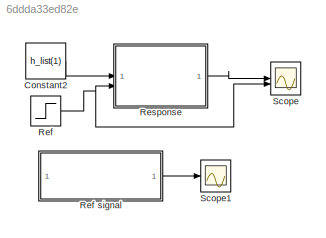
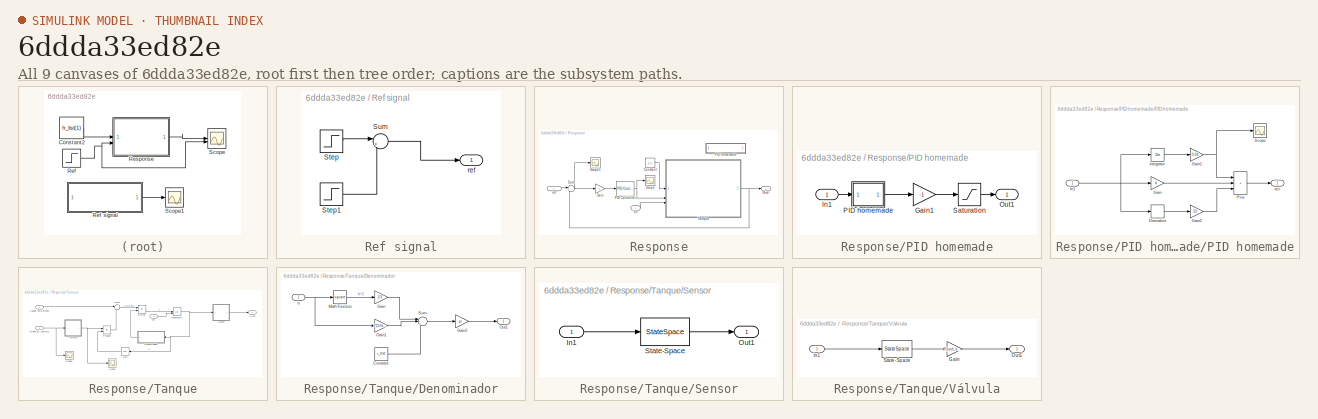
[diagram: thumbnail index - all 9 canvases of the model, root first then tree order]
MODEL slx_6ddda33ed82e
KIND model
CONFIG AbsTol = auto
CONFIG EnableMultiTasking = off
CONFIG FixedStep = 0.1
CONFIG MaxStep = auto
CONFIG MinStep = auto
CONFIG RelTol = 1e-3
CONFIG SampleTimeConstraint = Unconstrained
CONFIG SolverName = FixedStepAuto
CONFIG StartTime = 0.0
CONFIG StopTime = 400
BLOCK [Constant] Constant2
  Value = h_list(1)
BLOCK [Step] Ref
  After = 0.8
  Before = h_list(1)
  SampleTime = 0
  Time = 20
BLOCK [SubSystem] Ref signal
BLOCK [Step] Ref signal/Step
  After = 0.6
  Before = 0.2
  SampleTime = 0
  Time = 40
BLOCK [Step] Ref signal/Step1
  After = 0.4
  SampleTime = 0
  Time = 400
BLOCK [Sum] Ref signal/Sum
  Inputs = |++
BLOCK [Outport] Ref signal/ref
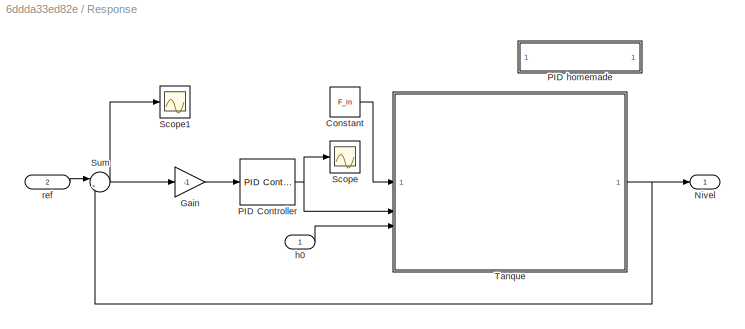
BLOCK [SubSystem] Response
BLOCK [Constant] Response/Constant
  Value = F_in
BLOCK [Gain] Response/Gain
  Gain = -1
BLOCK [Outport] Response/Nivel
BLOCK [Reference] Response/PID Controller  REF=slpidlib/PID Controller
  LibrarySourceBlock = simulink/Continuous/PID Controller
  SourceBlock = slpidlib/PID Controller
  SourceType = PID 1dof
BLOCK [SubSystem] Response/PID homemade
BLOCK [Gain] Response/PID homemade/Gain1
  Gain = -1
BLOCK [Inport] Response/PID homemade/In1
BLOCK [Outport] Response/PID homemade/Out1
BLOCK [SubSystem] Response/PID homemade/PID homemade
BLOCK [Derivative] Response/PID homemade/PID homemade/Derivative
BLOCK [Gain] Response/PID homemade/PID homemade/Gain
  Gain = 4
BLOCK [Gain] Response/PID homemade/PID homemade/Gain1
  Gain = 0.04
BLOCK [Gain] Response/PID homemade/PID homemade/Gain2
  Gain = 50
BLOCK [Inport] Response/PID homemade/PID homemade/In1
BLOCK [Integrator] Response/PID homemade/PID homemade/Integrator
BLOCK [Sum] Response/PID homemade/PID homemade/Plus
  IconShape = rectangular
  Inputs = +++
BLOCK [Scope] Response/PID homemade/PID homemade/Scope
  Floating = off
  NumInputPorts = 1
  ScopeSpecificationString = Simulink.scopes.TimeScopeBlockCfg('CurrentConfiguration', extmgr.ConfigurationSet(extmgr.Configuration('Core','General UI',true),extmgr.Configuration('Core','Source UI',true),extmgr.Configuration('Sources','WiredSimulink',true,'DataLoggingVariableName','ScopeData1'),extmgr.Configuration('Visuals','Time Domain',true,'SerializedDisplays',{struct('MinYLimReal','-0.59094','MaxYLimReal','0.93666','YLab...<+1453ch>
BLOCK [Outport] Response/PID homemade/PID homemade/act
BLOCK [Saturate] Response/PID homemade/Saturation
  LowerLimit = 0
  UpperLimit = 1
BLOCK [Scope] Response/Scope
  Floating = off
  NumInputPorts = 1
  ScopeSpecificationString = Simulink.scopes.TimeScopeBlockCfg('CurrentConfiguration', extmgr.ConfigurationSet(extmgr.Configuration('Core','General UI',true),extmgr.Configuration('Core','Source UI',true),extmgr.Configuration('Sources','WiredSimulink',true,'DataLoggingVariableName','ScopeData3'),extmgr.Configuration('Visuals','Time Domain',true,'SerializedDisplays',{struct('MinYLimReal','-0.11136','MaxYLimReal','1.00221','YLab...<+1535ch>
BLOCK [Scope] Response/Scope1
  Floating = off
  NumInputPorts = 1
  ScopeSpecificationString = Simulink.scopes.TimeScopeBlockCfg('CurrentConfiguration', extmgr.ConfigurationSet(extmgr.Configuration('Core','General UI',true),extmgr.Configuration('Core','Source UI',true),extmgr.Configuration('Sources','WiredSimulink',true,'DataLoggingVariableName','ScopeData4'),extmgr.Configuration('Visuals','Time Domain',true,'SerializedDisplays',{struct('MinYLimReal','-0.07548','MaxYLimReal','0.67505','YLab...<+1451ch>
BLOCK [Sum] Response/Sum
  Inputs = |+-
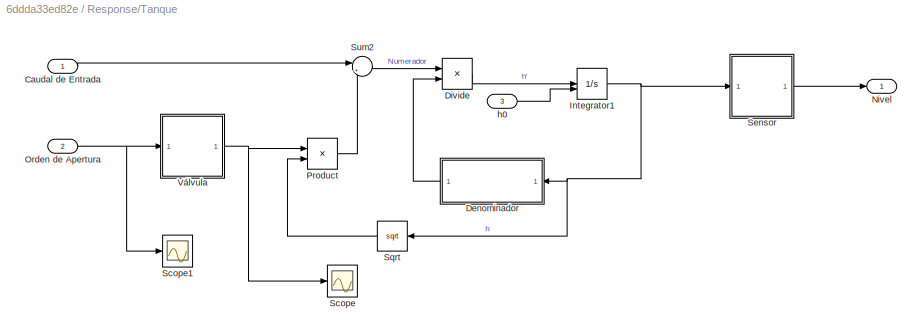
BLOCK [SubSystem] Response/Tanque
BLOCK [Inport] Response/Tanque/Caudal de Entrada
BLOCK [SubSystem] Response/Tanque/Denominador
  NameLocation = top
BLOCK [Constant] Response/Tanque/Denominador/Constant
  Value = r_0^2
BLOCK [Gain] Response/Tanque/Denominador/Gain
  Gain = 1/3
BLOCK [Gain] Response/Tanque/Denominador/Gain1
  Gain = 2*(1/tand(theta))*r_0
BLOCK [Gain] Response/Tanque/Denominador/Gain2
  Gain = pi
BLOCK [Math] Response/Tanque/Denominador/Math Function
  Operator = square
BLOCK [Outport] Response/Tanque/Denominador/Out1
BLOCK [Sum] Response/Tanque/Denominador/Sum
  Inputs = |+++
BLOCK [Inport] Response/Tanque/Denominador/h
BLOCK [Product] Response/Tanque/Divide
  Inputs = */
BLOCK [Integrator] Response/Tanque/Integrator1
  InitialCondition = h_list(5)
  InitialConditionSource = external
BLOCK [Outport] Response/Tanque/Nivel
BLOCK [Inport] Response/Tanque/Orden de Apertura
  Port = 2
BLOCK [Product] Response/Tanque/Product
BLOCK [Scope] Response/Tanque/Scope
  Floating = off
  NumInputPorts = 1
  ScopeSpecificationString = Simulink.scopes.TimeScopeBlockCfg('CurrentConfiguration', extmgr.ConfigurationSet(extmgr.Configuration('Core','General UI',true),extmgr.Configuration('Core','Source UI',true),extmgr.Configuration('Sources','WiredSimulink',true,'DataLoggingVariableName','ScopeData3'),extmgr.Configuration('Visuals','Time Domain',true,'SerializedDisplays',{struct('MinYLimReal','-0.00072','MaxYLimReal','0.00646','YLab...<+1455ch>
BLOCK [Scope] Response/Tanque/Scope1
  Floating = off
  NumInputPorts = 1
  ScopeSpecificationString = Simulink.scopes.TimeScopeBlockCfg('CurrentConfiguration', extmgr.ConfigurationSet(extmgr.Configuration('Core','General UI',true),extmgr.Configuration('Core','Source UI',true),extmgr.Configuration('Sources','WiredSimulink',true,'DataLoggingVariableName','ScopeData4'),extmgr.Configuration('Visuals','Time Domain',true,'SerializedDisplays',{struct('MinYLimReal','-0.10897','MaxYLimReal','0.98071','YLab...<+1500ch>
BLOCK [SubSystem] Response/Tanque/Sensor
BLOCK [Inport] Response/Tanque/Sensor/In1
BLOCK [Outport] Response/Tanque/Sensor/Out1
BLOCK [StateSpace] Response/Tanque/Sensor/State-Space
  A = A
  B = B
  C = C
  D = D
  InitialCondition = h_list(1)*10
BLOCK [Sqrt] Response/Tanque/Sqrt
  NameLocation = top
BLOCK [Sum] Response/Tanque/Sum2
  Inputs = |+-
BLOCK [SubSystem] Response/Tanque/Válvula
BLOCK [Gain] Response/Tanque/Válvula/Gain
  Gain = F_out_sin_k
BLOCK [Inport] Response/Tanque/Válvula/In1
BLOCK [Outport] Response/Tanque/Válvula/Out1
BLOCK [StateSpace] Response/Tanque/Válvula/State-Space
  A = A
  B = B
  C = C
  D = D
  InitialCondition = k_list(1)*10
BLOCK [Inport] Response/Tanque/h0
  Port = 3
BLOCK [Inport] Response/h0
BLOCK [Inport] Response/ref
  Port = 2
BLOCK [Scope] Scope
  Floating = off
  NumInputPorts = 2
  ScopeSpecificationString = Simulink.scopes.TimeScopeBlockCfg('CurrentConfiguration', extmgr.ConfigurationSet(extmgr.Configuration('Core','General UI',true),extmgr.Configuration('Core','Source UI',true),extmgr.Configuration('Sources','WiredSimulink',true,'DataLoggingVariableName','ScopeData6'),extmgr.Configuration('Visuals','Time Domain',true,'SerializedDisplays',{struct('MinYLimReal','0.12495','MaxYLimReal','0.87548','YLabe...<+1487ch>
BLOCK [Scope] Scope1
  Floating = off
  NumInputPorts = 1
  ScopeSpecificationString = Simulink.scopes.TimeScopeBlockCfg('CurrentConfiguration', extmgr.ConfigurationSet(extmgr.Configuration('Core','General UI',true),extmgr.Configuration('Core','Source UI',true),extmgr.Configuration('Sources','WiredSimulink',true,'DataLoggingVariableName','ScopeData2'),extmgr.Configuration('Visuals','Time Domain',true,'SerializedDisplays',{struct('MinYLimReal','0.1','MaxYLimReal','1.1','YLabelReal','...<+1424ch>
LINE Constant2:1 -> Response:1
LINE Ref signal/Step1:1 -> Ref signal/Sum:2
LINE Ref signal/Step:1 -> Ref signal/Sum:1
LINE Ref signal/Sum:1 -> Ref signal/ref:1
LINE Ref signal:1 -> Scope1:1
NET Ref:1 -> Response:2, Scope:2
LINE Response/Constant:1 -> Response/Tanque:1
LINE Response/Gain:1 -> Response/PID Controller:1
NET Response/PID Controller:1 -> Response/Scope:1, Response/Tanque:2
LINE Response/PID homemade/Gain1:1 -> Response/PID homemade/Saturation:1
LINE Response/PID homemade/In1:1 -> Response/PID homemade/PID homemade:1
LINE Response/PID homemade/PID homemade/Derivative:1 -> Response/PID homemade/PID homemade/Gain2:1
NET Response/PID homemade/PID homemade/Gain1:1 -> Response/PID homemade/PID homemade/Plus:1, Response/PID homemade/PID homemade/Scope:1
LINE Response/PID homemade/PID homemade/Gain2:1 -> Response/PID homemade/PID homemade/Plus:3
LINE Response/PID homemade/PID homemade/Gain:1 -> Response/PID homemade/PID homemade/Plus:2
NET Response/PID homemade/PID homemade/In1:1 -> Response/PID homemade/PID homemade/Derivative:1, Response/PID homemade/PID homemade/Gain:1, Response/PID homemade/PID homemade/Integrator:1
LINE Response/PID homemade/PID homemade/Integrator:1 -> Response/PID homemade/PID homemade/Gain1:1
LINE Response/PID homemade/PID homemade/Plus:1 -> Response/PID homemade/PID homemade/act:1
LINE Response/PID homemade/PID homemade:1 -> Response/PID homemade/Gain1:1
LINE Response/PID homemade/Saturation:1 -> Response/PID homemade/Out1:1
NET Response/Sum:1 -> Response/Gain:1, Response/Scope1:1
LINE Response/Tanque/Caudal de Entrada:1 -> Response/Tanque/Sum2:1
LINE Response/Tanque/Denominador/Constant:1 -> Response/Tanque/Denominador/Sum:3
LINE Response/Tanque/Denominador/Gain1:1 -> Response/Tanque/Denominador/Sum:2
LINE Response/Tanque/Denominador/Gain2:1 -> Response/Tanque/Denominador/Out1:1
LINE Response/Tanque/Denominador/Gain:1 -> Response/Tanque/Denominador/Sum:1
LINE Response/Tanque/Denominador/Math Function:1 -> Response/Tanque/Denominador/Gain:1
LINE Response/Tanque/Denominador/Sum:1 -> Response/Tanque/Denominador/Gain2:1
NET Response/Tanque/Denominador/h:1 -> Response/Tanque/Denominador/Gain1:1, Response/Tanque/Denominador/Math Function:1
LINE Response/Tanque/Denominador:1 -> Response/Tanque/Divide:2
LINE Response/Tanque/Divide:1 -> Response/Tanque/Integrator1:1
NET Response/Tanque/Integrator1:1 -> Response/Tanque/Denominador:1, Response/Tanque/Sensor:1, Response/Tanque/Sqrt:1
NET Response/Tanque/Orden de Apertura:1 -> Response/Tanque/Scope1:1, Response/Tanque/Válvula:1
LINE Response/Tanque/Product:1 -> Response/Tanque/Sum2:2
LINE Response/Tanque/Sensor/In1:1 -> Response/Tanque/Sensor/State-Space:1
LINE Response/Tanque/Sensor/State-Space:1 -> Response/Tanque/Sensor/Out1:1
LINE Response/Tanque/Sensor:1 -> Response/Tanque/Nivel:1
LINE Response/Tanque/Sqrt:1 -> Response/Tanque/Product:2
LINE Response/Tanque/Sum2:1 -> Response/Tanque/Divide:1
LINE Response/Tanque/Válvula/Gain:1 -> Response/Tanque/Válvula/Out1:1
LINE Response/Tanque/Válvula/In1:1 -> Response/Tanque/Válvula/State-Space:1
LINE Response/Tanque/Válvula/State-Space:1 -> Response/Tanque/Válvula/Gain:1
NET Response/Tanque/Válvula:1 -> Response/Tanque/Product:1, Response/Tanque/Scope:1
LINE Response/Tanque/h0:1 -> Response/Tanque/Integrator1:2
NET Response/Tanque:1 -> Response/Nivel:1, Response/Sum:2
LINE Response/h0:1 -> Response/Tanque:3
LINE Response/ref:1 -> Response/Sum:1
LINE Response:1 -> Scope:1
note: NET lines group one-source signal fan-out (src -> all destinations, sorted); 1:1 wires keep LINE
